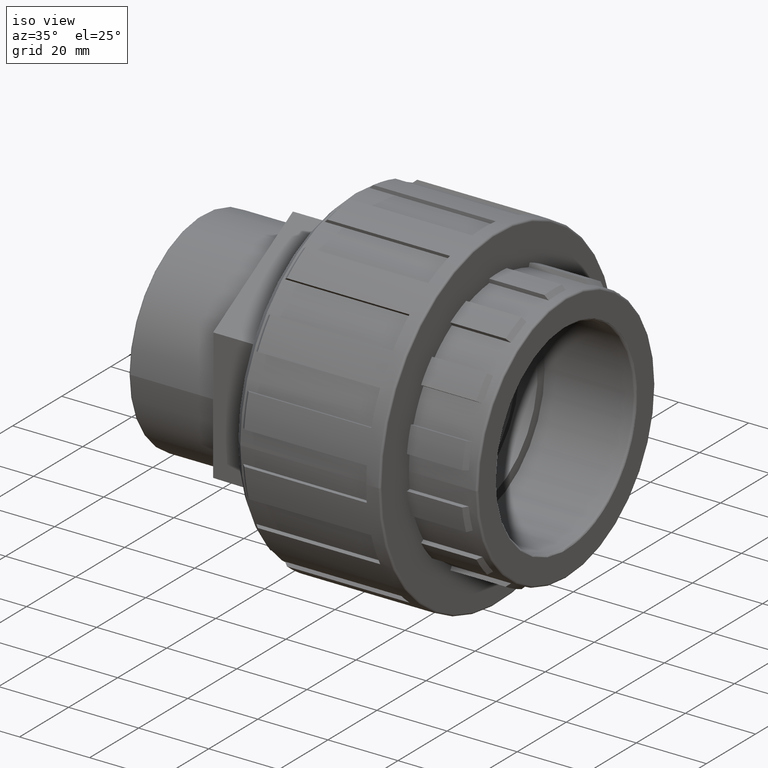
[diagram: clean part render]
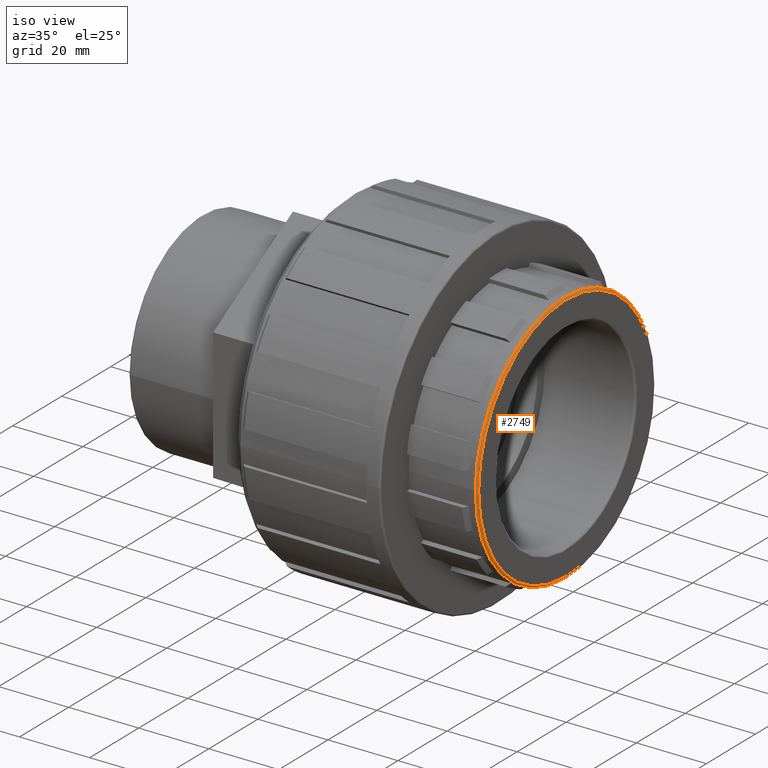
[diagram: same view with one face highlighted and labeled with its STEP entity id]
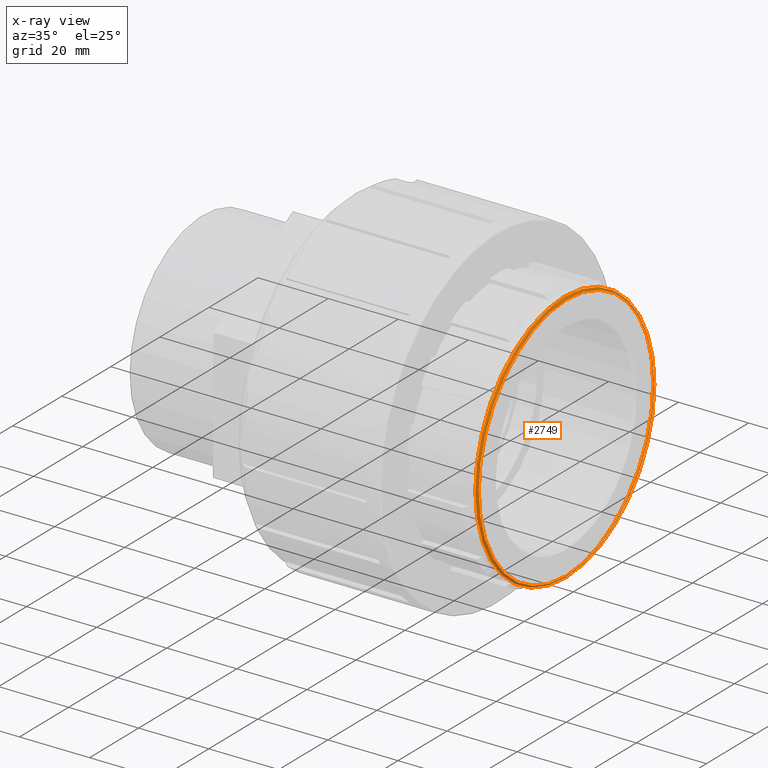
[diagram: x-ray of the same camera — body ghosted, the highlighted face saturated]
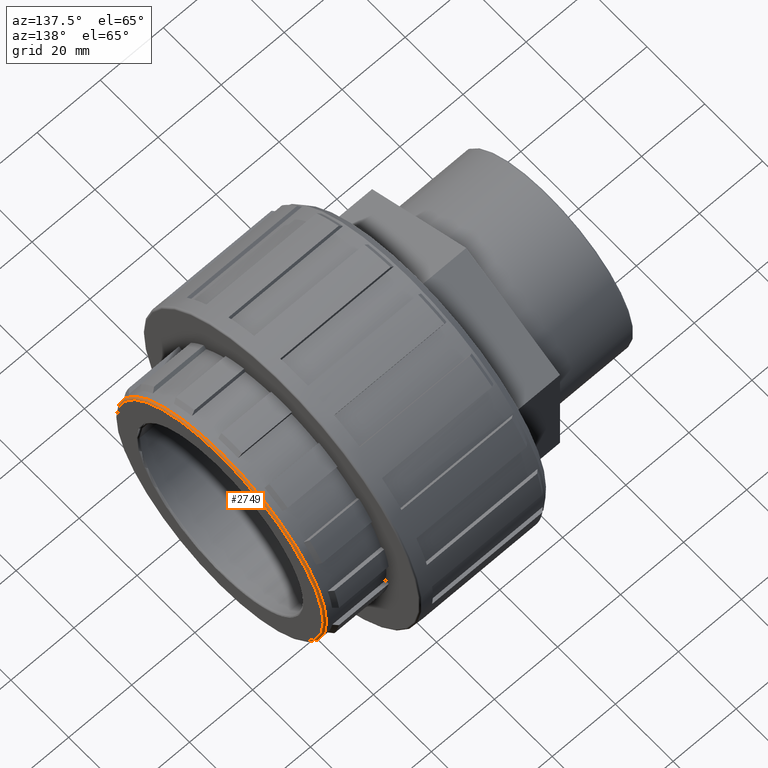
[diagram: same view with one face highlighted and labeled with its STEP entity id]
A machine part, iso view. The second image highlights one B-rep face of the part: STEP entity #2749.
The next image is the same camera in x-ray: the body ghosted, the highlighted face saturated — about 0% of this face is hidden behind the body in this view.
A second angle (auxiliary view) of the same face is appended — the face is thin or edge-on in the first view.
In plain terms, the highlighted toroidal blend (fillet) surface has major radius 35.6933 mm and minor (blend) radius 0.5666 mm.
Its self-contained STEP definition (entity closure, byte-faithful):
#17=TOROIDAL_SURFACE('',#3024,35.69328,0.56656);
#57=FACE_BOUND('',#518,.T.);
#218=CIRCLE('',#3021,35.69328);
#220=CIRCLE('',#3025,36.25984);
#363=FACE_OUTER_BOUND('',#517,.T.);
#517=EDGE_LOOP('',(#2358));
#518=EDGE_LOOP('',(#2359));
#1323=VERTEX_POINT('',#4653);
#1325=VERTEX_POINT('',#4659);
#1717=EDGE_CURVE('',#1323,#1323,#218,.T.);
#1719=EDGE_CURVE('',#1325,#1325,#220,.T.);
#2358=ORIENTED_EDGE('',*,*,#1717,.T.);
#2359=ORIENTED_EDGE('',*,*,#1719,.T.);
#2749=ADVANCED_FACE('',(#363,#57),#17,.T.);
#3021=AXIS2_PLACEMENT_3D('',#4654,#3816,#3817);
#3024=AXIS2_PLACEMENT_3D('',#4658,#3822,#3823);
#3025=AXIS2_PLACEMENT_3D('',#4660,#3824,#3825);
#3816=DIRECTION('center_axis',(-1.,-1.83697019872103E-16,0.));
#3817=DIRECTION('ref_axis',(-1.83697019872103E-16,1.,6.12323399573677E-17));
#3822=DIRECTION('center_axis',(-1.,-1.83697019872103E-16,0.));
#3823=DIRECTION('ref_axis',(0.,0.,1.));
#3824=DIRECTION('center_axis',(1.,1.83697019872103E-16,0.));
#3825=DIRECTION('ref_axis',(-1.83711184267524E-16,1.,6.12323399573677E-17));
#4653=CARTESIAN_POINT('',(52.,-35.69328,2.18558305515351E-15));
#4654=CARTESIAN_POINT('Origin',(52.,1.91044900666987E-14,0.));
#4658=CARTESIAN_POINT('Origin',(51.43344,1.900041468312E-14,0.));
#4659=CARTESIAN_POINT('',(51.43344,-36.25984,-6.66082454903928E-15));
#4660=CARTESIAN_POINT('Origin',(51.43344,1.900041468312E-14,0.));